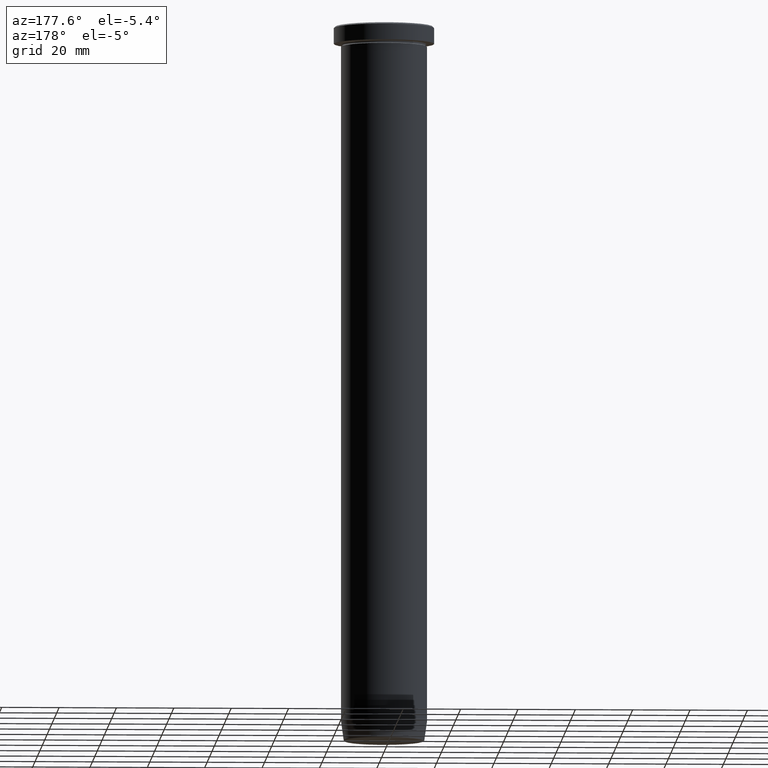
[diagram: clean part render]
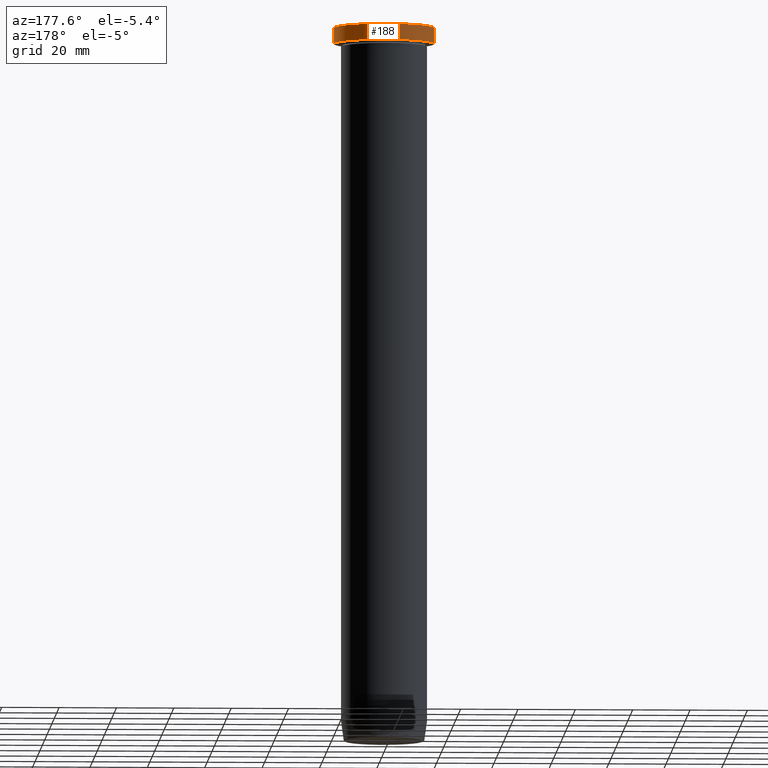
[diagram: same view with one face highlighted and labeled with its STEP entity id]
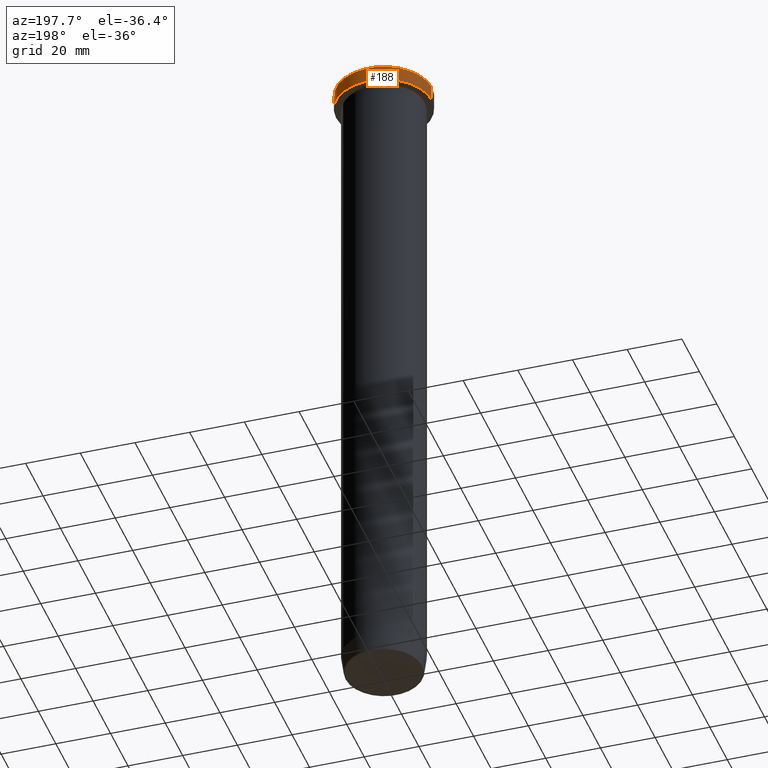
[diagram: same view with one face highlighted and labeled with its STEP entity id]
A machine part, auxiliary view. The second image highlights one B-rep face of the part: STEP entity #188.
A second angle (auxiliary view) of the same face is appended — the face is thin or edge-on in the first view.
In plain terms, the highlighted cylindrical surface (partial cylindrical patch) has radius 17.5 mm, axis along (-0, -0, 1).
Its self-contained STEP definition (entity closure, byte-faithful):
#1 = VECTOR ( 'NONE', #356, 1000.000000000000000 ) ;
#3 = EDGE_CURVE ( 'NONE', #287, #335, #157, .T. ) ;
#14 = DIRECTION ( 'NONE',  ( -0.000000000000000000, -0.000000000000000000, 1.000000000000000000 ) ) ;
#35 = VECTOR ( 'NONE', #14, 1000.000000000000000 ) ;
#45 = DIRECTION ( 'NONE',  ( 0.000000000000000000, 0.000000000000000000, -1.000000000000000000 ) ) ;
#50 = AXIS2_PLACEMENT_3D ( 'NONE', #546, #45, #226 ) ;
#62 = EDGE_LOOP ( 'NONE', ( #448, #389, #202, #380 ) ) ;
#122 = CYLINDRICAL_SURFACE ( 'NONE', #408, 17.50000000000000000 ) ;
#131 = DIRECTION ( 'NONE',  ( -0.000000000000000000, -0.000000000000000000, 1.000000000000000000 ) ) ;
#157 = LINE ( 'NONE', #436, #35 ) ;
#173 = EDGE_CURVE ( 'NONE', #482, #355, #588, .T. ) ;
#188 = ADVANCED_FACE ( 'NONE', ( #254 ), #122, .T. ) ;
#202 = ORIENTED_EDGE ( 'NONE', *, *, #457, .T. ) ;
#226 = DIRECTION ( 'NONE',  ( 1.000000000000000000, 0.000000000000000000, 0.000000000000000000 ) ) ;
#254 = FACE_OUTER_BOUND ( 'NONE', #62, .T. ) ;
#287 = VERTEX_POINT ( 'NONE', #517 ) ;
#304 = DIRECTION ( 'NONE',  ( -0.000000000000000000, -0.000000000000000000, 1.000000000000000000 ) ) ;
#308 = DIRECTION ( 'NONE',  ( 1.000000000000000000, 0.000000000000000000, 0.000000000000000000 ) ) ;
#328 = EDGE_CURVE ( 'NONE', #287, #482, #533, .T. ) ;
#335 = VERTEX_POINT ( 'NONE', #489 ) ;
#348 = CARTESIAN_POINT ( 'NONE',  ( -17.50000000000000000, 2.143131898507868248E-15, -5.999999999999999112 ) ) ;
#349 = DIRECTION ( 'NONE',  ( 1.000000000000000000, 0.000000000000000000, 0.000000000000000000 ) ) ;
#353 = AXIS2_PLACEMENT_3D ( 'NONE', #579, #131, #349 ) ;
#355 = VERTEX_POINT ( 'NONE', #359 ) ;
#356 = DIRECTION ( 'NONE',  ( -0.000000000000000000, -0.000000000000000000, 1.000000000000000000 ) ) ;
#359 = CARTESIAN_POINT ( 'NONE',  ( -17.50000000000000000, 2.143131898507868248E-15, -0.5000000000000073275 ) ) ;
#380 = ORIENTED_EDGE ( 'NONE', *, *, #3, .F. ) ;
#389 = ORIENTED_EDGE ( 'NONE', *, *, #173, .T. ) ;
#408 = AXIS2_PLACEMENT_3D ( 'NONE', #461, #304, #308 ) ;
#436 = CARTESIAN_POINT ( 'NONE',  ( 17.50000000000000000, 0.000000000000000000, 0.000000000000000000 ) ) ;
#448 = ORIENTED_EDGE ( 'NONE', *, *, #328, .T. ) ;
#457 = EDGE_CURVE ( 'NONE', #355, #335, #541, .T. ) ;
#461 = CARTESIAN_POINT ( 'NONE',  ( 0.000000000000000000, 0.000000000000000000, 0.000000000000000000 ) ) ;
#482 = VERTEX_POINT ( 'NONE', #348 ) ;
#486 = CARTESIAN_POINT ( 'NONE',  ( -17.50000000000000000, 2.143131898507868248E-15, 0.000000000000000000 ) ) ;
#489 = CARTESIAN_POINT ( 'NONE',  ( 17.50000000000000000, 0.000000000000000000, -0.5000000000000073275 ) ) ;
#517 = CARTESIAN_POINT ( 'NONE',  ( 17.50000000000000000, 0.000000000000000000, -5.999999999999999112 ) ) ;
#533 = CIRCLE ( 'NONE', #353, 17.50000000000000000 ) ;
#541 = CIRCLE ( 'NONE', #50, 17.50000000000000000 ) ;
#546 = CARTESIAN_POINT ( 'NONE',  ( 0.000000000000000000, 0.000000000000000000, -0.5000000000000073275 ) ) ;
#579 = CARTESIAN_POINT ( 'NONE',  ( 0.000000000000000000, 0.000000000000000000, -5.999999999999999112 ) ) ;
#588 = LINE ( 'NONE', #486, #1 ) ;